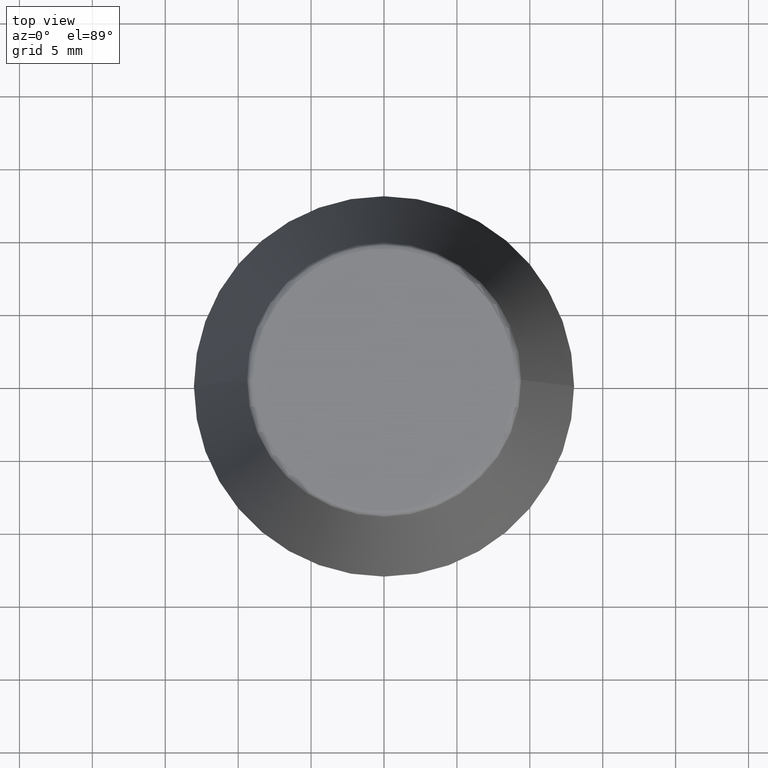
[diagram: clean part render]
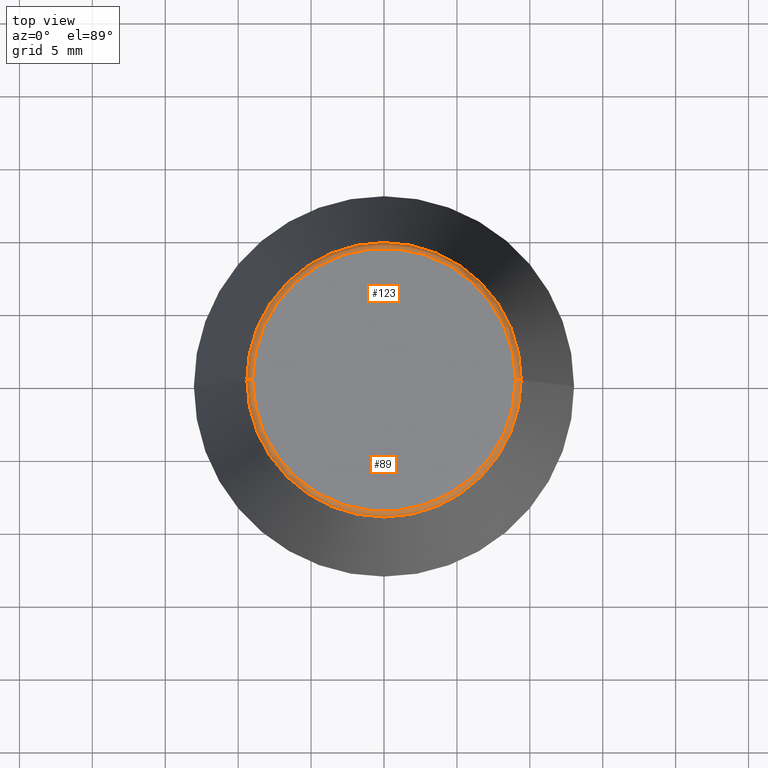
[diagram: same view with one multi-face feature highlighted, each face labeled with its STEP entity id]
A machine part, top view. The highlighted faces form ONE feature: a constant-radius fillet chain: 2 tangent blend faces with common blend radius 0.4 mm. The faces share edges in the B-rep.
Their STEP definitions:
[1] entity #89 (Torus):
#8 = DIRECTION ( 'NONE',  ( -1.000000000000000000, 1.224646799147353200E-016, 0.0000000000000000000 ) ) ;
#17 = CIRCLE ( 'NONE', #92, 0.3999999999999975800 ) ;
#19 = CARTESIAN_POINT ( 'NONE',  ( -9.012603057622234500, 1.127980121063915600E-015, 34.00000000000000000 ) ) ;
#24 = CIRCLE ( 'NONE', #246, 0.4000000000000010200 ) ;
#30 = VERTEX_POINT ( 'NONE', #19 ) ;
#31 = DIRECTION ( 'NONE',  ( 0.0000000000000000000, 0.0000000000000000000, -1.000000000000000000 ) ) ;
#81 = DIRECTION ( 'NONE',  ( 1.000000000000000000, 0.0000000000000000000, 0.0000000000000000000 ) ) ;
#85 = AXIS2_PLACEMENT_3D ( 'NONE', #276, #362, #248 ) ;
#89 = ADVANCED_FACE ( 'NONE', ( #155 ), #217, .T. ) ;
#92 = AXIS2_PLACEMENT_3D ( 'NONE', #331, #363, #31 ) ;
#113 = EDGE_LOOP ( 'NONE', ( #184, #326, #167, #370 ) ) ;
#125 = CARTESIAN_POINT ( 'NONE',  ( -9.012603057622234500, 1.103725548650271700E-015, 33.60000000000000100 ) ) ;
#135 = CIRCLE ( 'NONE', #85, 9.408710285118862900 ) ;
#139 = VERTEX_POINT ( 'NONE', #316 ) ;
#147 = EDGE_CURVE ( 'NONE', #30, #160, #342, .T. ) ;
#155 = FACE_OUTER_BOUND ( 'NONE', #113, .T. ) ;
#160 = VERTEX_POINT ( 'NONE', #315 ) ;
#162 = DIRECTION ( 'NONE',  ( 1.224646799147353200E-016, 1.000000000000000000, 0.0000000000000000000 ) ) ;
#164 = CARTESIAN_POINT ( 'NONE',  ( 9.408710285118862900, 1.374377508408924700E-015, 33.65566924038402900 ) ) ;
#167 = ORIENTED_EDGE ( 'NONE', *, *, #296, .T. ) ;
#183 = CARTESIAN_POINT ( 'NONE',  ( 0.0000000000000000000, 0.0000000000000000000, 33.60000000000000100 ) ) ;
#184 = ORIENTED_EDGE ( 'NONE', *, *, #356, .F. ) ;
#202 = EDGE_CURVE ( 'NONE', #139, #321, #135, .T. ) ;
#206 = CARTESIAN_POINT ( 'NONE',  ( 0.0000000000000000000, 0.0000000000000000000, 34.00000000000000000 ) ) ;
#217 = TOROIDAL_SURFACE ( 'NONE', #280, 9.012603057622234500, 0.4000000000000009700 ) ;
#233 = DIRECTION ( 'NONE',  ( -0.0000000000000000000, -0.0000000000000000000, 1.000000000000000000 ) ) ;
#246 = AXIS2_PLACEMENT_3D ( 'NONE', #125, #162, #8 ) ;
#248 = DIRECTION ( 'NONE',  ( 1.000000000000000000, 0.0000000000000000000, 0.0000000000000000000 ) ) ;
#263 = DIRECTION ( 'NONE',  ( -0.0000000000000000000, -0.0000000000000000000, 1.000000000000000000 ) ) ;
#276 = CARTESIAN_POINT ( 'NONE',  ( 0.0000000000000000000, 0.0000000000000000000, 33.65566924038402900 ) ) ;
#280 = AXIS2_PLACEMENT_3D ( 'NONE', #183, #233, #319 ) ;
#296 = EDGE_CURVE ( 'NONE', #321, #160, #17, .T. ) ;
#315 = CARTESIAN_POINT ( 'NONE',  ( 9.012603057622234500, 0.0000000000000000000, 34.00000000000000000 ) ) ;
#316 = CARTESIAN_POINT ( 'NONE',  ( -9.408710285118862900, 0.0000000000000000000, 33.65566924038402900 ) ) ;
#319 = DIRECTION ( 'NONE',  ( 1.000000000000000000, 0.0000000000000000000, 0.0000000000000000000 ) ) ;
#321 = VERTEX_POINT ( 'NONE', #164 ) ;
#326 = ORIENTED_EDGE ( 'NONE', *, *, #202, .T. ) ;
#331 = CARTESIAN_POINT ( 'NONE',  ( 9.012603057622234500, 0.0000000000000000000, 33.60000000000000100 ) ) ;
#340 = AXIS2_PLACEMENT_3D ( 'NONE', #206, #263, #81 ) ;
#342 = CIRCLE ( 'NONE', #340, 9.012603057622234500 ) ;
#356 = EDGE_CURVE ( 'NONE', #139, #30, #24, .T. ) ;
#362 = DIRECTION ( 'NONE',  ( -0.0000000000000000000, -0.0000000000000000000, 1.000000000000000000 ) ) ;
#363 = DIRECTION ( 'NONE',  ( 0.0000000000000000000, -1.000000000000000000, 0.0000000000000000000 ) ) ;
#370 = ORIENTED_EDGE ( 'NONE', *, *, #147, .F. ) ;
[2] entity #123 (Torus):
#8 = DIRECTION ( 'NONE',  ( -1.000000000000000000, 1.224646799147353200E-016, 0.0000000000000000000 ) ) ;
#17 = CIRCLE ( 'NONE', #92, 0.3999999999999975800 ) ;
#19 = CARTESIAN_POINT ( 'NONE',  ( -9.012603057622234500, 1.127980121063915600E-015, 34.00000000000000000 ) ) ;
#20 = FACE_OUTER_BOUND ( 'NONE', #218, .T. ) ;
#24 = CIRCLE ( 'NONE', #246, 0.4000000000000010200 ) ;
#30 = VERTEX_POINT ( 'NONE', #19 ) ;
#31 = DIRECTION ( 'NONE',  ( 0.0000000000000000000, 0.0000000000000000000, -1.000000000000000000 ) ) ;
#37 = DIRECTION ( 'NONE',  ( 1.000000000000000000, 0.0000000000000000000, 0.0000000000000000000 ) ) ;
#47 = CARTESIAN_POINT ( 'NONE',  ( 0.0000000000000000000, 0.0000000000000000000, 33.60000000000000100 ) ) ;
#67 = DIRECTION ( 'NONE',  ( -0.0000000000000000000, -0.0000000000000000000, 1.000000000000000000 ) ) ;
#92 = AXIS2_PLACEMENT_3D ( 'NONE', #331, #363, #31 ) ;
#102 = AXIS2_PLACEMENT_3D ( 'NONE', #47, #112, #269 ) ;
#108 = CIRCLE ( 'NONE', #154, 9.012603057622234500 ) ;
#112 = DIRECTION ( 'NONE',  ( -0.0000000000000000000, -0.0000000000000000000, 1.000000000000000000 ) ) ;
#117 = TOROIDAL_SURFACE ( 'NONE', #102, 9.012603057622234500, 0.4000000000000009700 ) ;
#118 = ORIENTED_EDGE ( 'NONE', *, *, #171, .F. ) ;
#123 = ADVANCED_FACE ( 'NONE', ( #20 ), #117, .T. ) ;
#125 = CARTESIAN_POINT ( 'NONE',  ( -9.012603057622234500, 1.103725548650271700E-015, 33.60000000000000100 ) ) ;
#139 = VERTEX_POINT ( 'NONE', #316 ) ;
#141 = DIRECTION ( 'NONE',  ( 1.000000000000000000, 0.0000000000000000000, 0.0000000000000000000 ) ) ;
#154 = AXIS2_PLACEMENT_3D ( 'NONE', #372, #67, #141 ) ;
#160 = VERTEX_POINT ( 'NONE', #315 ) ;
#162 = DIRECTION ( 'NONE',  ( 1.224646799147353200E-016, 1.000000000000000000, 0.0000000000000000000 ) ) ;
#164 = CARTESIAN_POINT ( 'NONE',  ( 9.408710285118862900, 1.374377508408924700E-015, 33.65566924038402900 ) ) ;
#171 = EDGE_CURVE ( 'NONE', #160, #30, #108, .T. ) ;
#196 = EDGE_CURVE ( 'NONE', #321, #139, #325, .T. ) ;
#200 = CARTESIAN_POINT ( 'NONE',  ( 0.0000000000000000000, 0.0000000000000000000, 33.65566924038402900 ) ) ;
#218 = EDGE_LOOP ( 'NONE', ( #344, #333, #118, #272 ) ) ;
#231 = AXIS2_PLACEMENT_3D ( 'NONE', #200, #241, #37 ) ;
#241 = DIRECTION ( 'NONE',  ( -0.0000000000000000000, -0.0000000000000000000, 1.000000000000000000 ) ) ;
#246 = AXIS2_PLACEMENT_3D ( 'NONE', #125, #162, #8 ) ;
#269 = DIRECTION ( 'NONE',  ( 1.000000000000000000, 0.0000000000000000000, 0.0000000000000000000 ) ) ;
#272 = ORIENTED_EDGE ( 'NONE', *, *, #296, .F. ) ;
#296 = EDGE_CURVE ( 'NONE', #321, #160, #17, .T. ) ;
#315 = CARTESIAN_POINT ( 'NONE',  ( 9.012603057622234500, 0.0000000000000000000, 34.00000000000000000 ) ) ;
#316 = CARTESIAN_POINT ( 'NONE',  ( -9.408710285118862900, 0.0000000000000000000, 33.65566924038402900 ) ) ;
#321 = VERTEX_POINT ( 'NONE', #164 ) ;
#325 = CIRCLE ( 'NONE', #231, 9.408710285118862900 ) ;
#331 = CARTESIAN_POINT ( 'NONE',  ( 9.012603057622234500, 0.0000000000000000000, 33.60000000000000100 ) ) ;
#333 = ORIENTED_EDGE ( 'NONE', *, *, #356, .T. ) ;
#344 = ORIENTED_EDGE ( 'NONE', *, *, #196, .T. ) ;
#356 = EDGE_CURVE ( 'NONE', #139, #30, #24, .T. ) ;
#363 = DIRECTION ( 'NONE',  ( 0.0000000000000000000, -1.000000000000000000, 0.0000000000000000000 ) ) ;
#372 = CARTESIAN_POINT ( 'NONE',  ( 0.0000000000000000000, 0.0000000000000000000, 34.00000000000000000 ) ) ;